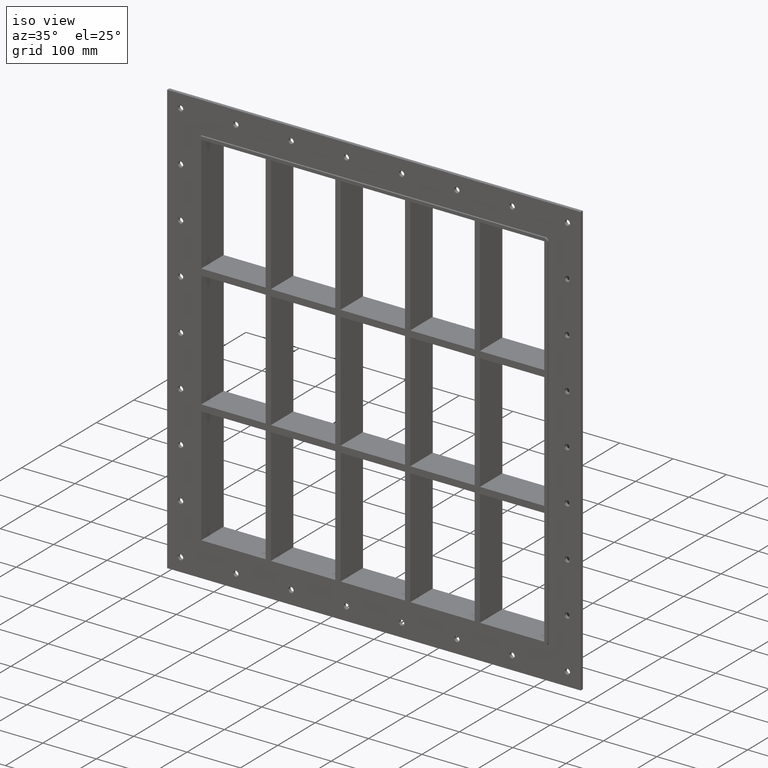
[diagram: clean part render]
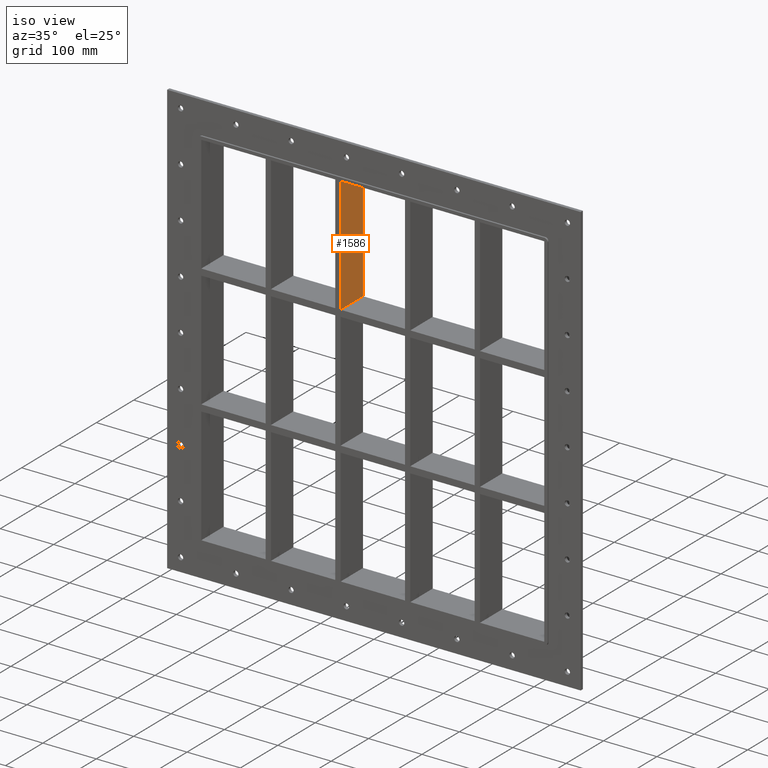
[diagram: same view with one face highlighted and labeled with its STEP entity id]
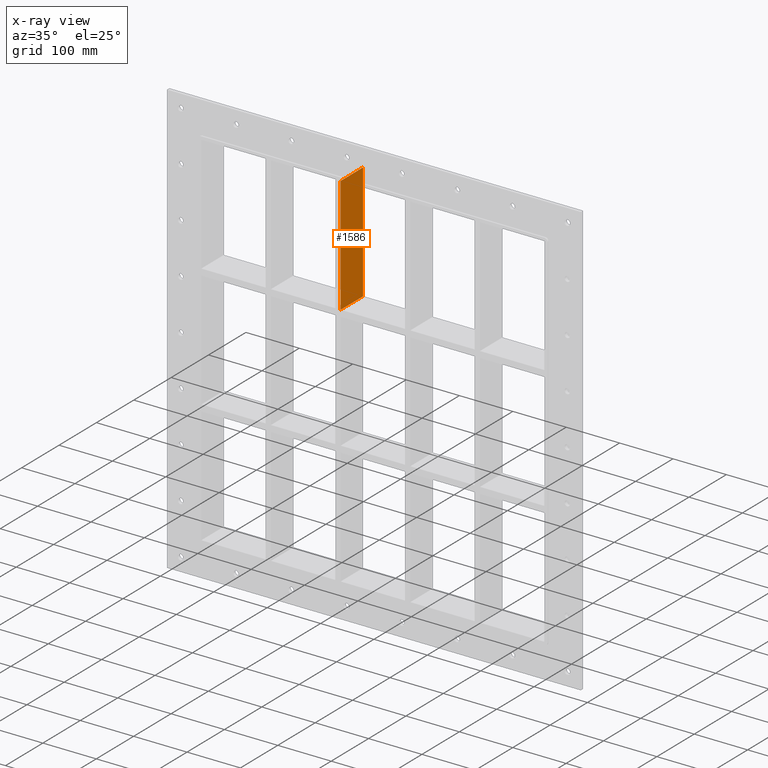
[diagram: x-ray of the same camera — body ghosted, the highlighted face saturated]
A machine part, iso view. The second image highlights one B-rep face of the part: STEP entity #1586.
The next image is the same camera in x-ray: the body ghosted, the highlighted face saturated — about 0% of this face is hidden behind the body in this view.
In plain terms, the highlighted planar face has unit normal (1, 0, 0).
Its self-contained STEP definition (entity closure, byte-faithful):
#1243=CARTESIAN_POINT('',(-60.250000000007269,57.0,120.99999999999994));
#1244=VERTEX_POINT('',#1243);
#1251=CARTESIAN_POINT('',(-60.250000000007269,-3.0,120.99999999999994));
#1252=VERTEX_POINT('',#1251);
#1253=CARTESIAN_POINT('',(-60.250000000007269,-3.0,120.99999999999994));
#1254=DIRECTION('',(0.0,1.0,0.0));
#1255=VECTOR('',#1254,60.0);
#1256=LINE('',#1253,#1255);
#1257=EDGE_CURVE('',#1252,#1244,#1256,.T.);
#1556=CARTESIAN_POINT('',(-60.250000000007269,-3.0,339.00000000000006));
#1557=DIRECTION('',(1.0,0.0,0.0));
#1558=DIRECTION('',(0.0,0.0,-1.0));
#1559=AXIS2_PLACEMENT_3D('',#1556,#1557,#1558);
#1560=PLANE('',#1559);
#1561=ORIENTED_EDGE('',*,*,#1257,.T.);
#1562=CARTESIAN_POINT('',(-60.250000000007269,57.0,339.00000000000006));
#1563=VERTEX_POINT('',#1562);
#1564=CARTESIAN_POINT('',(-60.250000000007269,57.0,339.00000000000006));
#1565=DIRECTION('',(0.0,0.0,-1.0));
#1566=VECTOR('',#1565,218.00000000000011);
#1567=LINE('',#1564,#1566);
#1568=EDGE_CURVE('',#1563,#1244,#1567,.T.);
#1569=ORIENTED_EDGE('',*,*,#1568,.F.);
#1570=CARTESIAN_POINT('',(-60.250000000007269,-3.0,339.00000000000006));
#1571=VERTEX_POINT('',#1570);
#1572=CARTESIAN_POINT('',(-60.25000000000729,-3.0,339.00000000000006));
#1573=DIRECTION('',(0.0,1.0,0.0));
#1574=VECTOR('',#1573,60.000000000000007);
#1575=LINE('',#1572,#1574);
#1576=EDGE_CURVE('',#1571,#1563,#1575,.T.);
#1577=ORIENTED_EDGE('',*,*,#1576,.F.);
#1578=CARTESIAN_POINT('',(-60.250000000007269,-3.0,339.00000000000006));
#1579=DIRECTION('',(0.0,0.0,-1.0));
#1580=VECTOR('',#1579,218.00000000000011);
#1581=LINE('',#1578,#1580);
#1582=EDGE_CURVE('',#1571,#1252,#1581,.T.);
#1583=ORIENTED_EDGE('',*,*,#1582,.T.);
#1584=EDGE_LOOP('',(#1561,#1569,#1577,#1583));
#1585=FACE_OUTER_BOUND('',#1584,.T.);
#1586=ADVANCED_FACE('',(#1585),#1560,.T.);